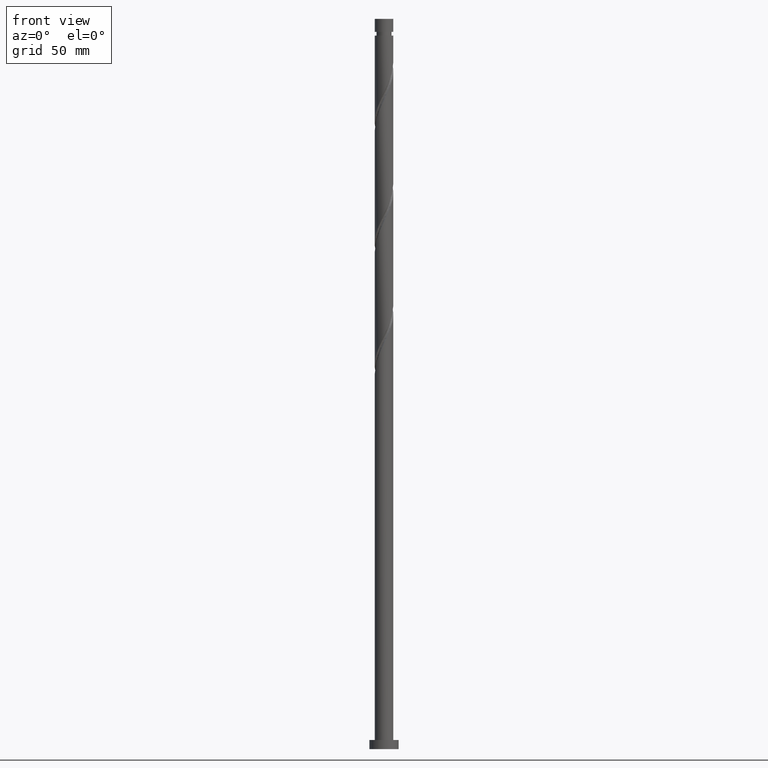
[diagram: clean part render]
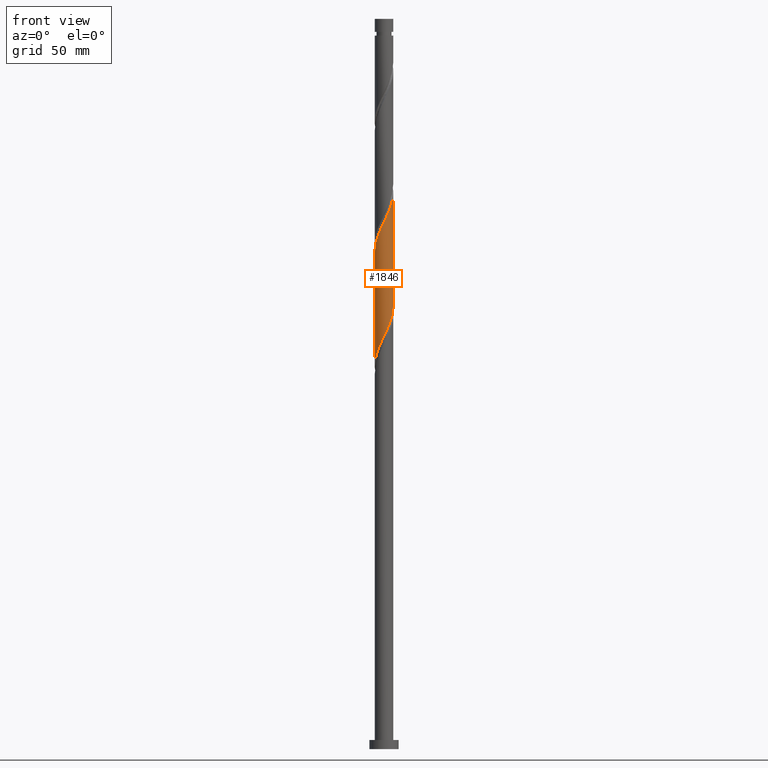
[diagram: same view with one face highlighted and labeled with its STEP entity id]
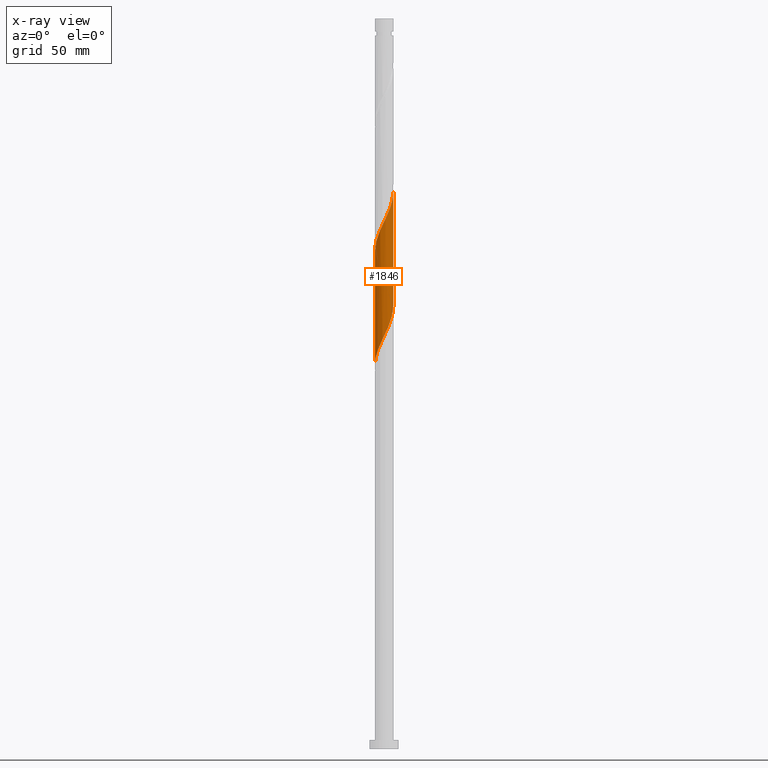
[diagram: x-ray of the same camera — body ghosted, the highlighted face saturated]
A machine part, front view. The second image highlights one B-rep face of the part: STEP entity #1846.
The next image is the same camera in x-ray: the body ghosted, the highlighted face saturated — about 0% of this face is hidden behind the body in this view.
In plain terms, the highlighted cylindrical surface (edge-blend (fillet) strip) has radius 5.1 mm, axis along (-0, -0, -1).
Its self-contained STEP definition (entity closure, byte-faithful):
#3 = CARTESIAN_POINT ( 'NONE',  ( 2.031852096560605947, -4.677774797668474704, 293.0686529038525237 ) ) ;
#18 = CARTESIAN_POINT ( 'NONE',  ( 1.105724163441033525, -4.978692004370486757, 228.6242084594080097 ) ) ;
#54 = CARTESIAN_POINT ( 'NONE',  ( -5.100000000000006750, -5.007719165922817574E-15, 272.0543207714421214 ) ) ;
#74 = CARTESIAN_POINT ( 'NONE',  ( -5.066997856243805387, -0.5792518664800763162, 210.8464306816302667 ) ) ;
#78 =( BOUNDED_CURVE ( )  B_SPLINE_CURVE ( 2, ( #1700, #628, #1390, #1255, #184, #769, #1549, #1231, #460, #954, #1423, #2000, #1079, #609, #18, #2009, #1267, #935, #1105, #1735, #1541, #1559, #780, #759, #1472, #1746, #1906, #990, #984, #352, #74, #811, #1924 ),
 .UNSPECIFIED., .F., .T. ) 
 B_SPLINE_CURVE_WITH_KNOTS ( ( 3, 2, 2, 2, 2, 2, 2, 2, 2, 2, 2, 2, 2, 2, 2, 2, 3 ),
 ( 0.8045286012773112949, 0.8083333333333333481, 0.8166666666666666519, 0.8249999999999999556, 0.8333333333333333703, 0.8416666666666666741, 0.8499999999999999778, 0.8583333333333332815, 0.8666666666666666963, 0.8750000000000000000, 0.8833333333333333037, 0.8916666666666667185, 0.9000000000000000222, 0.9083333333333333259, 0.9166666666666666297, 0.9250000000000000444, 0.9295286012773112949 ),
 .UNSPECIFIED. ) 
 CURVE ( )  GEOMETRIC_REPRESENTATION_ITEM ( )  RATIONAL_B_SPLINE_CURVE ( ( 0.9066196499552257038, 0.9068171577856383170, 0.9090909090909373713, 0.9041108139711856451, 0.9090909090909373713, 0.9041108139711856451, 0.9090909090909373713, 0.9041108139711856451, 0.9090909090909373713, 0.9041108139711856451, 0.9090909090909373713, 0.9041108139711856451, 0.9090909090909373713, 0.9041108139711856451, 0.9090909090909373713, 0.9041108139711856451, 0.9090909090909373713, 0.9041108139711856451, 0.9090909090909373713, 0.9041108139711856451, 0.9090909090909373713, 0.9041108139711856451, 0.9090909090909373713, 0.9041108139711856451, 0.9090909090909373713, 0.9041108139711856451, 0.9090909090909373713, 0.9041108139711856451, 0.9090909090909373713, 0.9041108139711856451, 0.9090909090909373713, 0.9063845652764845884, 0.9066196499552257038 ) ) 
 REPRESENTATION_ITEM ( '' )  );
#109 = LINE ( 'NONE', #1308, #1781 ) ;
#184 = CARTESIAN_POINT ( 'NONE',  ( 4.864535835123824370, -1.531760787067013574, 239.7353195705191240 ) ) ;
#185 = CARTESIAN_POINT ( 'NONE',  ( -3.035145759683209210, -4.098522931188393947, 281.9575417927413241 ) ) ;
#229 = AXIS2_PLACEMENT_3D ( 'NONE', #1403, #580, #290 ) ;
#242 = VERTEX_POINT ( 'NONE', #684 ) ;
#290 = DIRECTION ( 'NONE',  ( -1.000000000000000000, 0.000000000000000000, 0.000000000000000000 ) ) ;
#295 =( BOUNDED_CURVE ( )  B_SPLINE_CURVE ( 2, ( #54, #1126, #1448, #644, #1279, #955, #1747, #1754, #1724, #946, #185, #1424, #501, #510, #1414, #800, #1568, #656, #344, #812, #3, #359, #966, #1436, #1268, #629, #831, #985, #1256, #790, #1915, #1115, #1880 ),
 .UNSPECIFIED., .F., .T. ) 
 B_SPLINE_CURVE_WITH_KNOTS ( ( 3, 2, 2, 2, 2, 2, 2, 2, 2, 2, 2, 2, 2, 2, 2, 2, 3 ),
 ( 0.3045286012773115725, 0.3083333333333333481, 0.3166666666666666519, 0.3249999999999999556, 0.3333333333333333703, 0.3416666666666666741, 0.3499999999999999778, 0.3583333333333332815, 0.3666666666666666963, 0.3750000000000000000, 0.3833333333333333037, 0.3916666666666667185, 0.4000000000000000222, 0.4083333333333333259, 0.4166666666666666297, 0.4250000000000000444, 0.4295286012773117390 ),
 .UNSPECIFIED. ) 
 CURVE ( )  GEOMETRIC_REPRESENTATION_ITEM ( )  RATIONAL_B_SPLINE_CURVE ( ( 0.9066196499552316990, 0.9068171577856445342, 0.9090909090909433665, 0.9041108139711916403, 0.9090909090909433665, 0.9041108139711916403, 0.9090909090909433665, 0.9041108139711916403, 0.9090909090909433665, 0.9041108139711916403, 0.9090909090909433665, 0.9041108139711916403, 0.9090909090909433665, 0.9041108139711916403, 0.9090909090909433665, 0.9041108139711916403, 0.9090909090909433665, 0.9041108139711916403, 0.9090909090909433665, 0.9041108139711916403, 0.9090909090909433665, 0.9041108139711916403, 0.9090909090909433665, 0.9041108139711916403, 0.9090909090909433665, 0.9041108139711916403, 0.9090909090909433665, 0.9041108139711916403, 0.9090909090909433665, 0.9041108139711916403, 0.9090909090909433665, 0.9063845652764903615, 0.9066196499552316990 ) ) 
 REPRESENTATION_ITEM ( '' )  );
#344 = CARTESIAN_POINT ( 'NONE',  ( 1.014887185848756035, -4.998000000000005549, 290.8464306816302951 ) ) ;
#352 = CARTESIAN_POINT ( 'NONE',  ( -5.006116031791203902, -1.111814801253403040, 211.9575417927414094 ) ) ;
#359 = CARTESIAN_POINT ( 'NONE',  ( 2.523506039414605606, -4.464218536886509270, 294.1797640149635527 ) ) ;
#431 = DIRECTION ( 'NONE',  ( -0.000000000000000000, -0.000000000000000000, -1.000000000000000000 ) ) ;
#458 = ORIENTED_EDGE ( 'NONE', *, *, #1432, .T. ) ;
#460 = CARTESIAN_POINT ( 'NONE',  ( 3.820951375190243748, -3.377918084920322528, 235.2908751260747238 ) ) ;
#461 = LINE ( 'NONE', #1080, #777 ) ;
#501 = CARTESIAN_POINT ( 'NONE',  ( -2.116689710232775301, -4.640002658468502794, 284.1797640149635527 ) ) ;
#510 = CARTESIAN_POINT ( 'NONE',  ( -1.629005779183738456, -4.862475711757243246, 285.2908751260746385 ) ) ;
#580 = DIRECTION ( 'NONE',  ( -0.000000000000000000, -0.000000000000000000, -1.000000000000000000 ) ) ;
#609 = CARTESIAN_POINT ( 'NONE',  ( 1.629005779183732017, -4.862475711757237917, 229.7353195705190672 ) ) ;
#628 = CARTESIAN_POINT ( 'NONE',  ( 5.100000000000000533, -0.2440043963624154433, 242.4633253995877453 ) ) ;
#629 = CARTESIAN_POINT ( 'NONE',  ( 4.121098741290862399, -3.051864191043565100, 298.6242084594080097 ) ) ;
#634 = VERTEX_POINT ( 'NONE', #1500 ) ;
#644 = CARTESIAN_POINT ( 'NONE',  ( -5.025530381258461077, -1.020477468193841775, 274.1797640149636095 ) ) ;
#656 = CARTESIAN_POINT ( 'NONE',  ( 0.4895762179909035616, -5.104668941549574512, 289.7353195705191524 ) ) ;
#684 = CARTESIAN_POINT ( 'NONE',  ( -5.100000000000006750, -5.007719165922817574E-15, 272.0543207714421214 ) ) ;
#726 = EDGE_LOOP ( 'NONE', ( #944, #1412, #458, #1764 ) ) ;
#759 = CARTESIAN_POINT ( 'NONE',  ( -3.396524602074721066, -3.841998243563394144, 218.6242084594080097 ) ) ;
#760 = CYLINDRICAL_SURFACE ( 'NONE', #229, 5.099999999999999645 ) ;
#769 = CARTESIAN_POINT ( 'NONE',  ( 4.703541288989194769, -2.043044105940180710, 238.6242084594079529 ) ) ;
#777 = VECTOR ( 'NONE', #431, 1000.000000000000000 ) ;
#780 = CARTESIAN_POINT ( 'NONE',  ( -2.960015320744662670, -4.153108390224947932, 219.7353195705191808 ) ) ;
#790 = CARTESIAN_POINT ( 'NONE',  ( 5.006116031791208343, -1.111814801253410145, 303.0686529038524100 ) ) ;
#800 = CARTESIAN_POINT ( 'NONE',  ( -0.5824425476983398076, -5.094908296983741813, 287.5130973482969239 ) ) ;
#811 = CARTESIAN_POINT ( 'NONE',  ( -5.099999999999997868, -0.2905660609768159208, 210.2441319012029908 ) ) ;
#812 = CARTESIAN_POINT ( 'NONE',  ( 1.540198153706606288, -4.891331058450438363, 291.9575417927414378 ) ) ;
#831 = CARTESIAN_POINT ( 'NONE',  ( 4.393329915788834583, -2.590106609974761387, 299.7353195705191524 ) ) ;
#935 = CARTESIAN_POINT ( 'NONE',  ( -0.4895762179909071699, -5.104668941549566519, 225.2908751260746385 ) ) ;
#944 = ORIENTED_EDGE ( 'NONE', *, *, #1638, .F. ) ;
#946 = CARTESIAN_POINT ( 'NONE',  ( -3.465917878084601611, -3.779516257197031326, 280.8464306816302383 ) ) ;
#954 = CARTESIAN_POINT ( 'NONE',  ( 3.465917878084596282, -3.779516257197026885, 234.1797640149636379 ) ) ;
#955 = CARTESIAN_POINT ( 'NONE',  ( -4.703541288989202762, -2.043044105940178934, 276.4019862371857243 ) ) ;
#966 = CARTESIAN_POINT ( 'NONE',  ( 2.960015320744664002, -4.153108390224958590, 295.2908751260746953 ) ) ;
#980 = EDGE_CURVE ( 'NONE', #634, #1926, #78, .T. ) ;
#984 = CARTESIAN_POINT ( 'NONE',  ( -4.835838561039001782, -1.620081915079675916, 213.0686529038524952 ) ) ;
#985 = CARTESIAN_POINT ( 'NONE',  ( 4.665561090286806767, -2.128349028905955453, 300.8464306816302951 ) ) ;
#990 = CARTESIAN_POINT ( 'NONE',  ( -4.665561090286798773, -2.128349028905951457, 214.1797640149635527 ) ) ;
#1079 = CARTESIAN_POINT ( 'NONE',  ( 2.116689710232769972, -4.640002658468493024, 230.8464306816301814 ) ) ;
#1080 = CARTESIAN_POINT ( 'NONE',  ( 5.099999999999999645, 6.245698675651499853E-16, 400.0000000000000000 ) ) ;
#1105 = CARTESIAN_POINT ( 'NONE',  ( -1.014887185848756257, -4.997999999999998444, 224.1797640149635527 ) ) ;
#1115 = CARTESIAN_POINT ( 'NONE',  ( 5.100000000000011191, -0.2905660609767911629, 304.7820627953909138 ) ) ;
#1126 = CARTESIAN_POINT ( 'NONE',  ( -5.100000000000007638, -0.2440043963624286549, 272.5628692970061593 ) ) ;
#1152 = DIRECTION ( 'NONE',  ( -0.000000000000000000, -0.000000000000000000, -1.000000000000000000 ) ) ;
#1231 = CARTESIAN_POINT ( 'NONE',  ( 4.175984872295892103, -2.976319912643618615, 236.4019862371857812 ) ) ;
#1255 = CARTESIAN_POINT ( 'NONE',  ( 5.025530381258453971, -1.020477468193841997, 240.8464306816302667 ) ) ;
#1256 = CARTESIAN_POINT ( 'NONE',  ( 4.835838561039007999, -1.620081915079683021, 301.9575417927414946 ) ) ;
#1267 = CARTESIAN_POINT ( 'NONE',  ( 0.04643316485371489638, -5.099788619266650613, 226.4019862371858380 ) ) ;
#1268 = CARTESIAN_POINT ( 'NONE',  ( 3.758811671682793953, -3.446931217303482953, 297.5130973482969239 ) ) ;
#1279 = CARTESIAN_POINT ( 'NONE',  ( -4.864535835123834140, -1.531760787067011131, 275.2908751260746953 ) ) ;
#1308 = CARTESIAN_POINT ( 'NONE',  ( -5.099999999999999645, 0.000000000000000000, 400.0000000000000000 ) ) ;
#1390 = CARTESIAN_POINT ( 'NONE',  ( 5.076705030977431754, -0.4868942682435483116, 241.9575417927414378 ) ) ;
#1403 = CARTESIAN_POINT ( 'NONE',  ( 0.000000000000000000, 0.000000000000000000, 400.0000000000000000 ) ) ;
#1412 = ORIENTED_EDGE ( 'NONE', *, *, #1917, .F. ) ;
#1414 = CARTESIAN_POINT ( 'NONE',  ( -1.105724163441039964, -4.978692004370493862, 286.4019862371858380 ) ) ;
#1423 = CARTESIAN_POINT ( 'NONE',  ( 3.035145759683200328, -4.098522931188389506, 233.0686529038524668 ) ) ;
#1424 = CARTESIAN_POINT ( 'NONE',  ( -2.604373641281812812, -4.417529605179758789, 283.0686529038525237 ) ) ;
#1432 = EDGE_CURVE ( 'NONE', #242, #1926, #109, .T. ) ;
#1436 = CARTESIAN_POINT ( 'NONE',  ( 3.396524602074723287, -3.841998243563401694, 296.4019862371857243 ) ) ;
#1448 = CARTESIAN_POINT ( 'NONE',  ( -5.076705030977439748, -0.4868942682435446478, 273.0686529038525237 ) ) ;
#1472 = CARTESIAN_POINT ( 'NONE',  ( -3.758811671682789068, -3.446931217303476291, 217.5130973482968955 ) ) ;
#1500 = CARTESIAN_POINT ( 'NONE',  ( 5.099999999999998757, 4.828338180874868254E-15, 242.9718739251517832 ) ) ;
#1541 = CARTESIAN_POINT ( 'NONE',  ( -2.031852096560607279, -4.677774797668464934, 221.9575417927413525 ) ) ;
#1549 = CARTESIAN_POINT ( 'NONE',  ( 4.439763080642544324, -2.509682009291896776, 237.5130973482969239 ) ) ;
#1559 = CARTESIAN_POINT ( 'NONE',  ( -2.523506039414603386, -4.464218536886502164, 220.8464306816302383 ) ) ;
#1568 = CARTESIAN_POINT ( 'NONE',  ( -0.04643316485371932339, -5.099788619266658607, 288.6242084594080666 ) ) ;
#1581 = CARTESIAN_POINT ( 'NONE',  ( -5.099999999999997868, -2.107726574313796898E-14, 209.6385405918184404 ) ) ;
#1590 = VERTEX_POINT ( 'NONE', #1805 ) ;
#1638 = EDGE_CURVE ( 'NONE', #1590, #634, #461, .T. ) ;
#1700 = CARTESIAN_POINT ( 'NONE',  ( 5.099999999999997868, 4.828338180874867465E-15, 242.9718739251517832 ) ) ;
#1724 = CARTESIAN_POINT ( 'NONE',  ( -3.820951375190251742, -3.377918084920324304, 279.7353195705192661 ) ) ;
#1735 = CARTESIAN_POINT ( 'NONE',  ( -1.540198153706608064, -4.891331058450430369, 223.0686529038524952 ) ) ;
#1746 = CARTESIAN_POINT ( 'NONE',  ( -4.121098741290858847, -3.051864191043557994, 216.4019862371857528 ) ) ;
#1747 = CARTESIAN_POINT ( 'NONE',  ( -4.439763080642553206, -2.509682009291899440, 277.5130973482969807 ) ) ;
#1754 = CARTESIAN_POINT ( 'NONE',  ( -4.175984872295900985, -2.976319912643618615, 278.6242084594079529 ) ) ;
#1764 = ORIENTED_EDGE ( 'NONE', *, *, #980, .F. ) ;
#1781 = VECTOR ( 'NONE', #1152, 1000.000000000000000 ) ;
#1805 = CARTESIAN_POINT ( 'NONE',  ( 5.100000000000006750, 3.213909315443002512E-15, 305.3876541047754358 ) ) ;
#1825 = FACE_OUTER_BOUND ( 'NONE', #726, .T. ) ;
#1846 = ADVANCED_FACE ( 'NONE', ( #1825 ), #760, .T. ) ;
#1880 = CARTESIAN_POINT ( 'NONE',  ( 5.100000000000006750, 3.213909315443002512E-15, 305.3876541047753790 ) ) ;
#1906 = CARTESIAN_POINT ( 'NONE',  ( -4.393329915788829254, -2.590106609974753393, 215.2908751260746953 ) ) ;
#1915 = CARTESIAN_POINT ( 'NONE',  ( 5.066997856243814269, -0.5792518664800790917, 304.1797640149636095 ) ) ;
#1917 = EDGE_CURVE ( 'NONE', #242, #1590, #295, .T. ) ;
#1924 = CARTESIAN_POINT ( 'NONE',  ( -5.099999999999997868, -2.107726574313796898E-14, 209.6385405918184404 ) ) ;
#1926 = VERTEX_POINT ( 'NONE', #1581 ) ;
#2000 = CARTESIAN_POINT ( 'NONE',  ( 2.604373641281806151, -4.417529605179754348, 231.9575417927414094 ) ) ;
#2009 = CARTESIAN_POINT ( 'NONE',  ( 0.5824425476983370320, -5.094908296983734708, 227.5130973482968955 ) ) ;